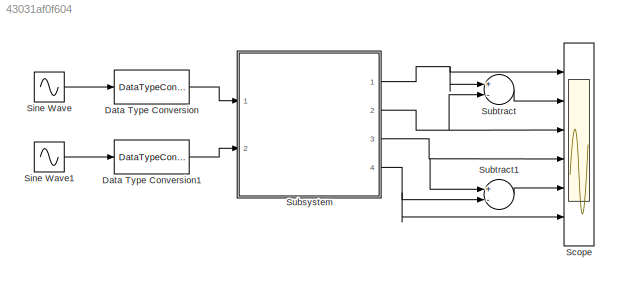
MODEL slx_43031af0f604
KIND model
CONFIG AbsTol = auto
CONFIG FixedStep = auto
CONFIG MaxStep = auto
CONFIG MinStep = auto
CONFIG RelTol = 1e-3
CONFIG SampleTimeConstraint = Unconstrained
CONFIG Solver = FixedStepDiscrete
CONFIG SolverMode = SingleTasking
CONFIG SolverName = FixedStepDiscrete
CONFIG StartTime = 0.0
CONFIG StopTime = 10
BLOCK [DataTypeConversion] Data Type Conversion
  OutDataTypeStr = fixdt(1,16,8)
  RndMeth = Floor
  SaturateOnIntegerOverflow = off
BLOCK [DataTypeConversion] Data Type Conversion1
  OutDataTypeStr = fixdt(1,16,8)
  RndMeth = Floor
  SaturateOnIntegerOverflow = off
BLOCK [Scope] Scope
  NumInputPorts = 6
  Ports = [6]
  ScopeSpecificationString = Simulink.scopes.TimeScopeBlockCfg('CurrentConfiguration', extmgr.ConfigurationSet(extmgr.Configuration('Core','General UI',true),extmgr.Configuration('Core','Source UI',true),extmgr.Configuration('Sources','WiredSimulink',true,'DataLoggingSaveFormat','StructureWithTime','DataLoggingDecimation','1','DataLoggingDecimateData',true),extmgr.Configuration('Visuals','Time Domain',true,'SerializedDisplays...<+6447ch>
BLOCK [Sin] Sine Wave
  Frequency = 2*pi
  Ports = [0, 1]
  SampleTime = 1/100
BLOCK [Sin] Sine Wave1
  Frequency = 2*pi*2.8
  Ports = [0, 1]
  SampleTime = 1/100
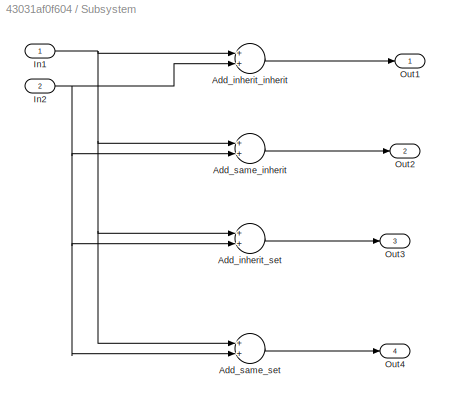
BLOCK [SubSystem] Subsystem
  Ports = [2, 4]
  RequestExecContextInheritance = off
  Variant = off
BLOCK [Sum] Subsystem/Add_inherit_inherit
  AttributesFormatString = %<AccumDataTypeStr>\n%<OutDataTypeStr>
  InputSameDT = off
  OutDataTypeStr = Inherit: Inherit via internal rule
  Ports = [2, 1]
  SaturateOnIntegerOverflow = off
BLOCK [Sum] Subsystem/Add_inherit_set
  AttributesFormatString = %<AccumDataTypeStr>\n%<OutDataTypeStr>
  InputSameDT = off
  OutDataTypeStr = fixdt(1,14,7)
  Ports = [2, 1]
  SaturateOnIntegerOverflow = off
BLOCK [Sum] Subsystem/Add_same_inherit
  AccumDataTypeStr = Inherit: Same as first input
  AttributesFormatString = %<AccumDataTypeStr>\n%<OutDataTypeStr>
  InputSameDT = off
  OutDataTypeStr = Inherit: Inherit via internal rule
  Ports = [2, 1]
  SaturateOnIntegerOverflow = off
BLOCK [Sum] Subsystem/Add_same_set
  AccumDataTypeStr = Inherit: Same as first input
  AttributesFormatString = %<AccumDataTypeStr>\n%<OutDataTypeStr>
  InputSameDT = off
  OutDataTypeStr = fixdt(1,14,7)
  Ports = [2, 1]
  SaturateOnIntegerOverflow = off
BLOCK [Inport] Subsystem/In1
  IconDisplay = Port number
BLOCK [Inport] Subsystem/In2
  IconDisplay = Port number
  Port = 2
BLOCK [Outport] Subsystem/Out1
  IconDisplay = Port number
BLOCK [Outport] Subsystem/Out2
  IconDisplay = Port number
  Port = 2
BLOCK [Outport] Subsystem/Out3
  IconDisplay = Port number
  Port = 3
BLOCK [Outport] Subsystem/Out4
  IconDisplay = Port number
  Port = 4
BLOCK [Sum] Subtract
  InputSameDT = off
  Inputs = +-
  OutDataTypeStr = Inherit: Inherit via internal rule
  Ports = [2, 1]
  SaturateOnIntegerOverflow = off
BLOCK [Sum] Subtract1
  InputSameDT = off
  Inputs = +-
  OutDataTypeStr = Inherit: Inherit via internal rule
  Ports = [2, 1]
  SaturateOnIntegerOverflow = off
LINE Data Type Conversion1:1 -> Subsystem:2
LINE Data Type Conversion:1 -> Subsystem:1
LINE Sine Wave1:1 -> Data Type Conversion1:1
LINE Sine Wave:1 -> Data Type Conversion:1
LINE Subsystem/Add_inherit_inherit:1 -> Subsystem/Out1:1
LINE Subsystem/Add_inherit_set:1 -> Subsystem/Out3:1
LINE Subsystem/Add_same_inherit:1 -> Subsystem/Out2:1
LINE Subsystem/Add_same_set:1 -> Subsystem/Out4:1
NET Subsystem/In1:1 -> Subsystem/Add_inherit_inherit:1, Subsystem/Add_inherit_set:1, Subsystem/Add_same_inherit:1, Subsystem/Add_same_set:1
NET Subsystem/In2:1 -> Subsystem/Add_inherit_inherit:2, Subsystem/Add_inherit_set:2, Subsystem/Add_same_inherit:2, Subsystem/Add_same_set:2
NET Subsystem:1 -> Scope:1, Subtract:1
NET Subsystem:2 -> Scope:3, Subtract:2
NET Subsystem:3 -> Scope:4, Subtract1:1
NET Subsystem:4 -> Scope:6, Subtract1:2
LINE Subtract1:1 -> Scope:5
LINE Subtract:1 -> Scope:2
note: NET lines group one-source signal fan-out (src -> all destinations, sorted); 1:1 wires keep LINE
